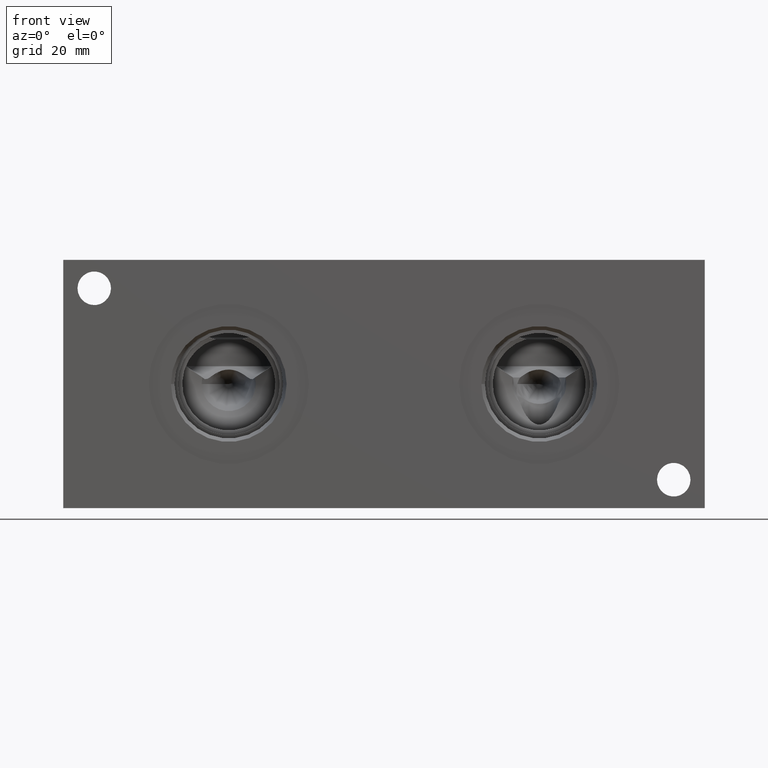
[diagram: clean part render]
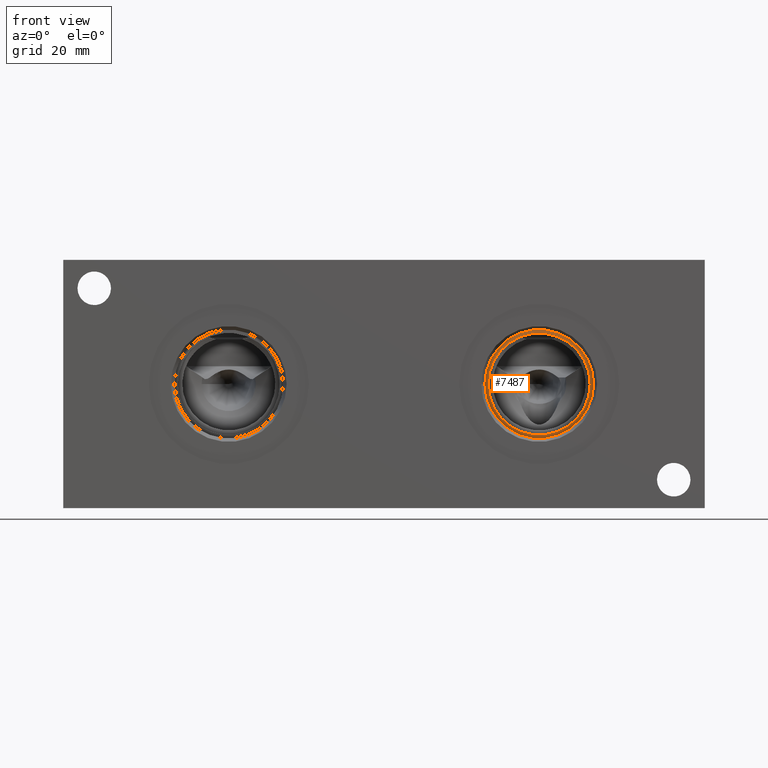
[diagram: same view with one face highlighted and labeled with its STEP entity id]
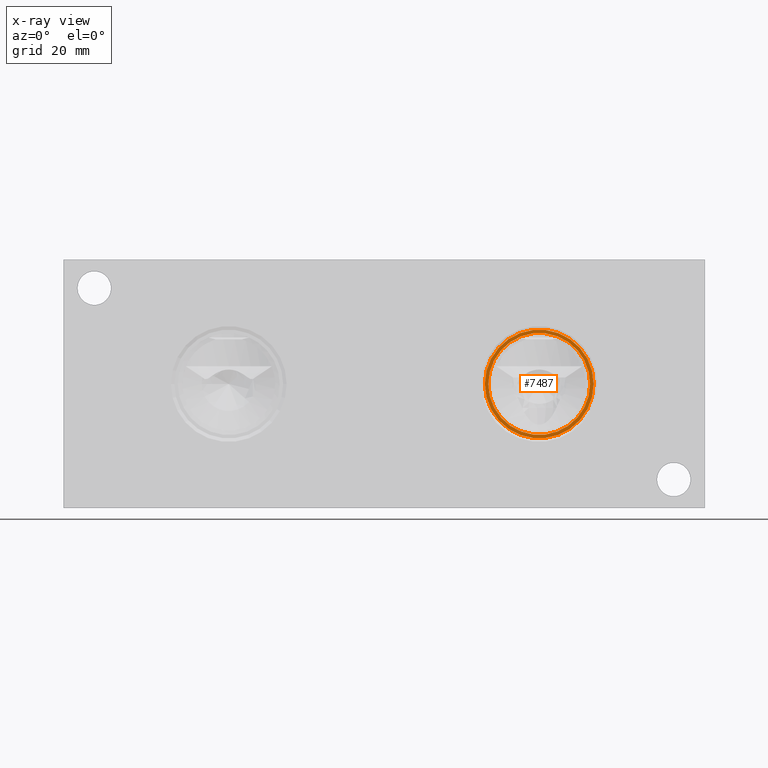
[diagram: x-ray of the same camera — body ghosted, the highlighted face saturated]
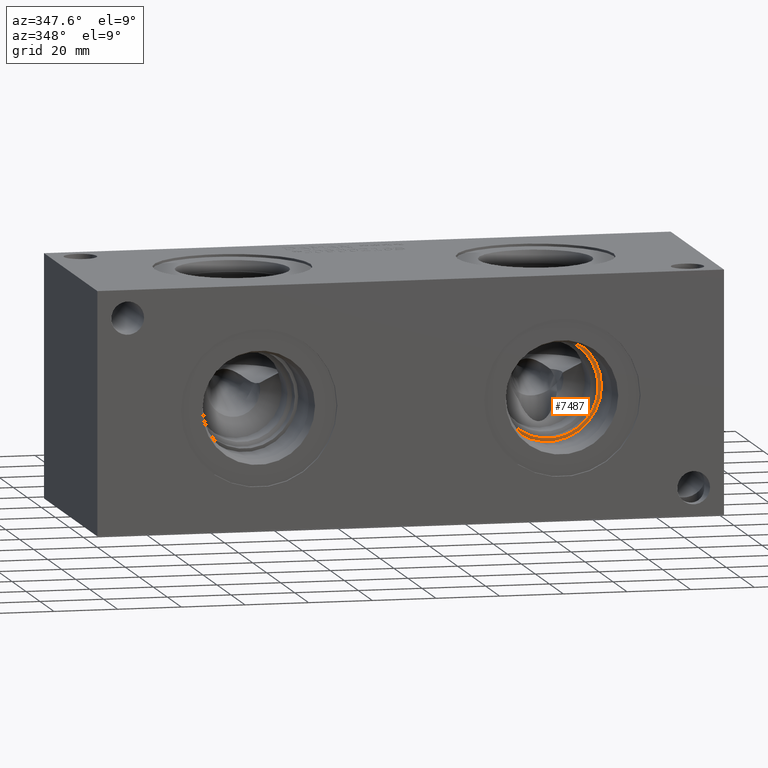
[diagram: same view with one face highlighted and labeled with its STEP entity id]
A machine part, front view. The second image highlights one B-rep face of the part: STEP entity #7487.
The next image is the same camera in x-ray: the body ghosted, the highlighted face saturated — about 0% of this face is hidden behind the body in this view.
A second angle (auxiliary view) of the same face is appended — the face is thin or edge-on in the first view.
In plain terms, the highlighted planar face has unit normal (0, -1, 0).
Its self-contained STEP definition (entity closure, byte-faithful):
#112=CIRCLE('',#7770,15.6337);
#144=CIRCLE('',#7845,16.6751);
#145=CIRCLE('',#7846,16.6751);
#221=FACE_BOUND('',#1366,.T.);
#946=FACE_OUTER_BOUND('',#1365,.T.);
#1365=EDGE_LOOP('',(#6438,#6439));
#1366=EDGE_LOOP('',(#6440));
#3386=VERTEX_POINT('',#12740);
#3432=VERTEX_POINT('',#12974);
#3433=VERTEX_POINT('',#12975);
#4375=EDGE_CURVE('',#3386,#3386,#112,.T.);
#4451=EDGE_CURVE('',#3432,#3433,#144,.T.);
#4452=EDGE_CURVE('',#3433,#3432,#145,.T.);
#6438=ORIENTED_EDGE('',*,*,#4451,.T.);
#6439=ORIENTED_EDGE('',*,*,#4452,.T.);
#6440=ORIENTED_EDGE('',*,*,#4375,.F.);
#6819=PLANE('',#7844);
#7487=ADVANCED_FACE('',(#946,#221),#6819,.T.);
#7770=AXIS2_PLACEMENT_3D('',#12741,#9030,#9031);
#7844=AXIS2_PLACEMENT_3D('',#12973,#9195,#9196);
#7845=AXIS2_PLACEMENT_3D('',#12976,#9197,#9198);
#7846=AXIS2_PLACEMENT_3D('',#12977,#9199,#9200);
#9030=DIRECTION('center_axis',(0.,-1.,0.));
#9031=DIRECTION('ref_axis',(1.,0.,0.));
#9195=DIRECTION('center_axis',(0.,-1.,0.));
#9196=DIRECTION('ref_axis',(1.,0.,0.));
#9197=DIRECTION('center_axis',(0.,-1.,0.));
#9198=DIRECTION('ref_axis',(1.,0.,0.));
#9199=DIRECTION('center_axis',(0.,-1.,0.));
#9200=DIRECTION('ref_axis',(1.,0.,0.));
#12740=CARTESIAN_POINT('',(130.4163,19.8374,38.1));
#12741=CARTESIAN_POINT('Origin',(146.05,19.8374,38.1));
#12973=CARTESIAN_POINT('Origin',(146.05,19.8374,38.1));
#12974=CARTESIAN_POINT('',(162.7251,19.8374,38.1));
#12975=CARTESIAN_POINT('',(129.3749,19.8374,38.1));
#12976=CARTESIAN_POINT('Origin',(146.05,19.8374,38.1));
#12977=CARTESIAN_POINT('Origin',(146.05,19.8374,38.1));